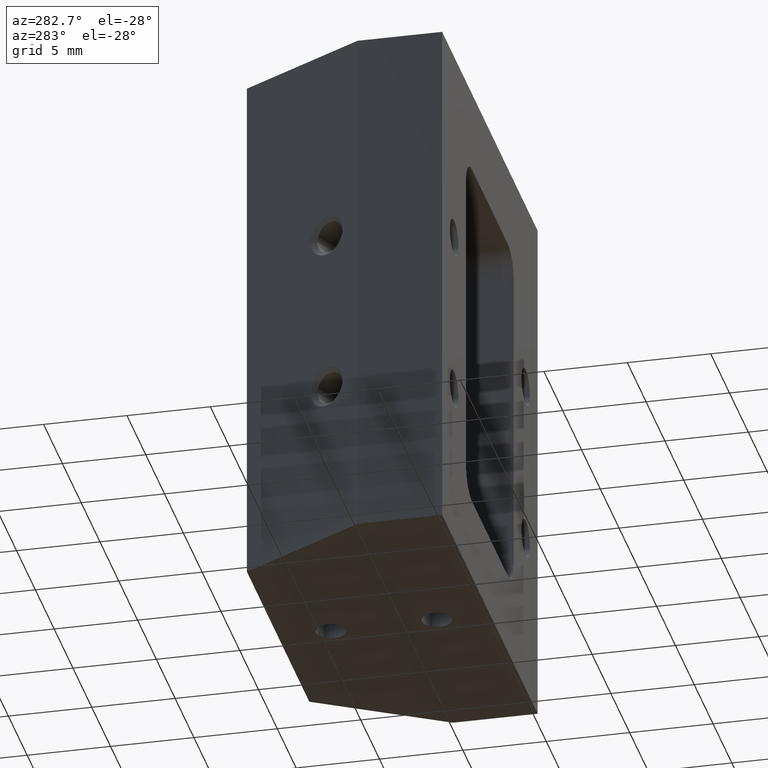
[diagram: clean part render]
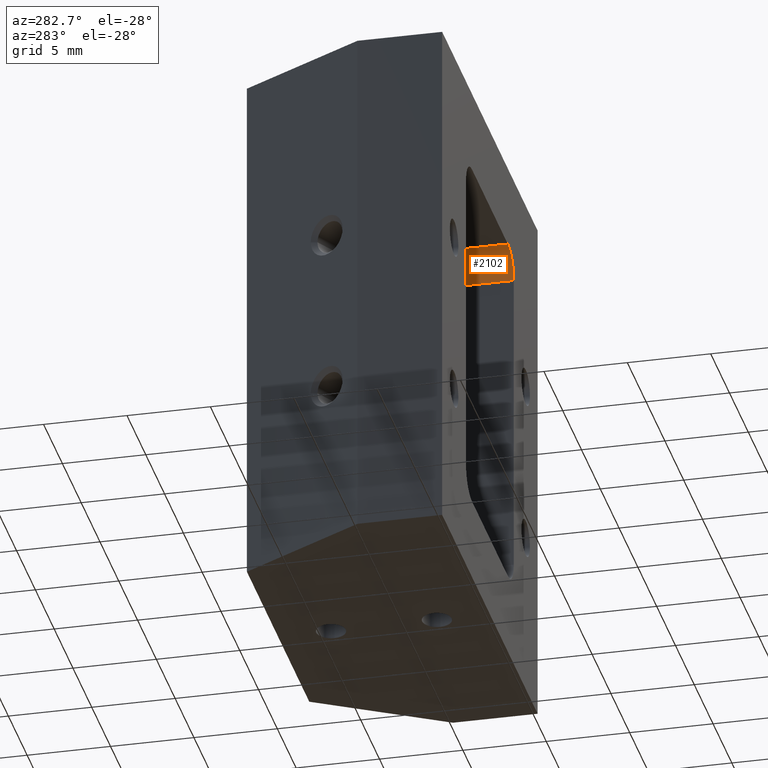
[diagram: same view with one face highlighted and labeled with its STEP entity id]
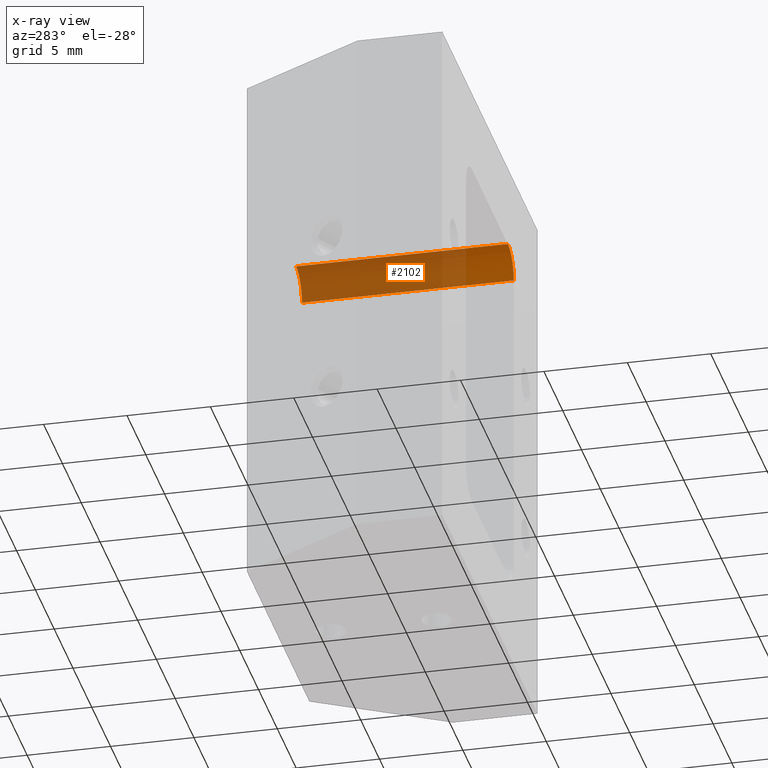
[diagram: x-ray of the same camera — body ghosted, the highlighted face saturated]
A machine part, auxiliary view. The second image highlights one B-rep face of the part: STEP entity #2102.
The next image is the same camera in x-ray: the body ghosted, the highlighted face saturated — about 78% of this face is hidden behind the body in this view.
In plain terms, the highlighted cylindrical surface (edge-blend (fillet) strip) has radius 1.5875 mm, axis along (0, -1, 0).
Its self-contained STEP definition (entity closure, byte-faithful):
#44 = EDGE_LOOP ( 'NONE', ( #1539, #1540, #1541, #1542 ) ) ;
#77 = VECTOR ( 'NONE', #366, 39.37007874015748100 ) ;
#78 = LINE ( 'NONE', #365, #77 ) ;
#102 = CIRCLE ( 'NONE', #1211, 0.06249999999999995100 ) ;
#177 = CARTESIAN_POINT ( 'NONE',  ( 0.1875000000000001900, -1.365923996832131600E-016, 1.000492125984252100 ) ) ;
#179 = DIRECTION ( 'NONE',  ( 0.0000000000000000000, -1.000000000000000000, 0.0000000000000000000 ) ) ;
#181 = DIRECTION ( 'NONE',  ( 0.0000000000000000000, 0.0000000000000000000, -1.000000000000000000 ) ) ;
#310 = CARTESIAN_POINT ( 'NONE',  ( 0.1875000000000001900, 0.4999999999999998300, 1.000492125984252100 ) ) ;
#311 = DIRECTION ( 'NONE',  ( 0.0000000000000000000, -1.000000000000000000, 0.0000000000000000000 ) ) ;
#312 = DIRECTION ( 'NONE',  ( 0.0000000000000000000, 0.0000000000000000000, -1.000000000000000000 ) ) ;
#365 = CARTESIAN_POINT ( 'NONE',  ( 0.2500000000000002200, 0.4999999999999998300, 1.000492125984252100 ) ) ;
#366 = DIRECTION ( 'NONE',  ( 0.0000000000000000000, 1.000000000000000000, 0.0000000000000000000 ) ) ;
#441 = DIRECTION ( 'NONE',  ( -0.0000000000000000000, -1.000000000000000000, -0.0000000000000000000 ) ) ;
#464 = CARTESIAN_POINT ( 'NONE',  ( 0.1875000000000001900, -1.365923996832131600E-016, 1.062992125984252100 ) ) ;
#605 = CARTESIAN_POINT ( 'NONE',  ( 0.1875000000000001900, -1.530808498934191600E-016, 1.000492125984252100 ) ) ;
#606 = DIRECTION ( 'NONE',  ( 0.0000000000000000000, 1.000000000000000000, -0.0000000000000000000 ) ) ;
#607 = DIRECTION ( 'NONE',  ( 0.0000000000000000000, 0.0000000000000000000, 1.000000000000000000 ) ) ;
#845 = CARTESIAN_POINT ( 'NONE',  ( 0.1875000000000001900, -1.365923996832131600E-016, 1.062992125984252100 ) ) ;
#847 = CARTESIAN_POINT ( 'NONE',  ( 0.2500000000000002200, 0.4999999999999998300, 1.000492125984252100 ) ) ;
#933 = CARTESIAN_POINT ( 'NONE',  ( 0.1875000000000001900, 0.4999999999999998300, 1.062992125984252100 ) ) ;
#939 = CARTESIAN_POINT ( 'NONE',  ( 0.2500000000000002200, -1.365923996832131600E-016, 1.000492125984252100 ) ) ;
#1052 = EDGE_CURVE ( 'NONE', #1347, #1508, #102, .T. ) ;
#1074 = EDGE_CURVE ( 'NONE', #1514, #1347, #78, .T. ) ;
#1095 = EDGE_CURVE ( 'NONE', #1508, #1344, #1669, .T. ) ;
#1144 = EDGE_CURVE ( 'NONE', #1344, #1514, #1720, .T. ) ;
#1211 = AXIS2_PLACEMENT_3D ( 'NONE', #310, #311, #312 ) ;
#1344 = VERTEX_POINT ( 'NONE', #845 ) ;
#1347 = VERTEX_POINT ( 'NONE', #847 ) ;
#1508 = VERTEX_POINT ( 'NONE', #933 ) ;
#1514 = VERTEX_POINT ( 'NONE', #939 ) ;
#1539 = ORIENTED_EDGE ( 'NONE', *, *, #1144, .F. ) ;
#1540 = ORIENTED_EDGE ( 'NONE', *, *, #1095, .F. ) ;
#1541 = ORIENTED_EDGE ( 'NONE', *, *, #1052, .F. ) ;
#1542 = ORIENTED_EDGE ( 'NONE', *, *, #1074, .F. ) ;
#1669 = LINE ( 'NONE', #464, #1673 ) ;
#1673 = VECTOR ( 'NONE', #441, 39.37007874015748100 ) ;
#1720 = CIRCLE ( 'NONE', #1938, 0.06249999999999995100 ) ;
#1847 = FACE_OUTER_BOUND ( 'NONE', #44, .T. ) ;
#1862 = CYLINDRICAL_SURFACE ( 'NONE', #1993, 0.06249999999999995100 ) ;
#1938 = AXIS2_PLACEMENT_3D ( 'NONE', #605, #606, #607 ) ;
#1993 = AXIS2_PLACEMENT_3D ( 'NONE', #177, #179, #181 ) ;
#2102 = ADVANCED_FACE ( 'NONE', ( #1847 ), #1862, .F. ) ;